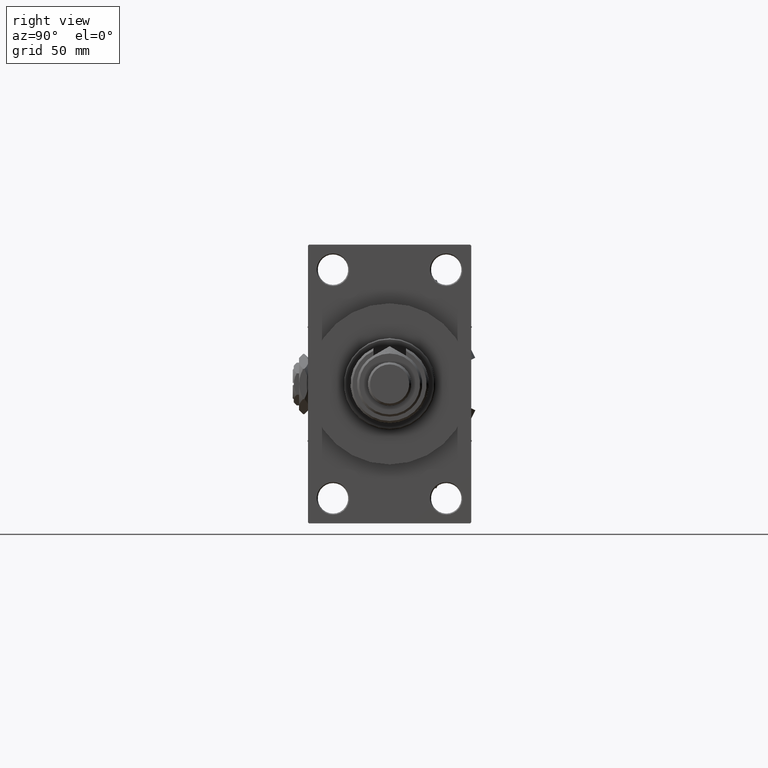
[diagram: clean part render]
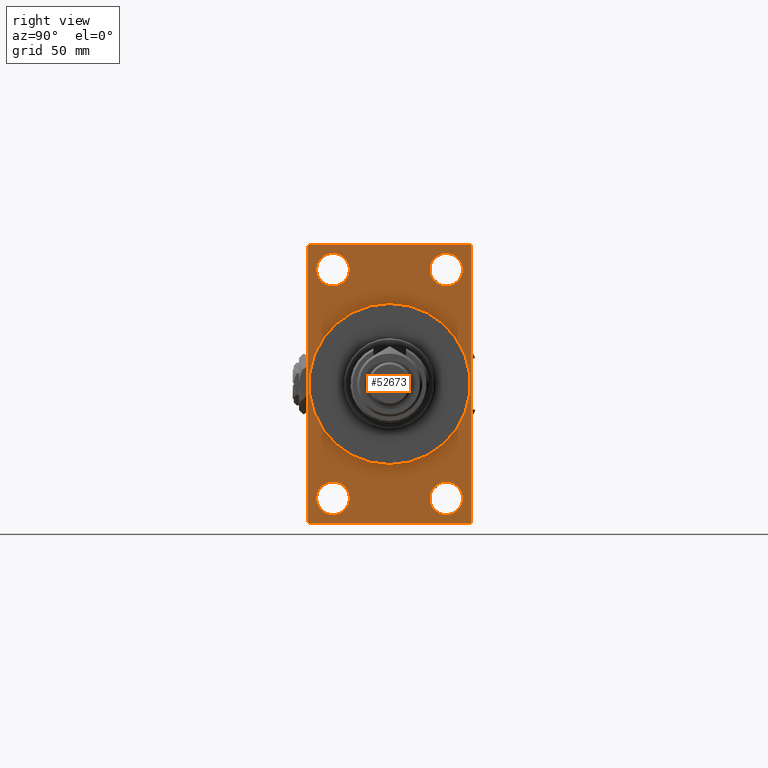
[diagram: same view with one face highlighted and labeled with its STEP entity id]
A machine part, right view. The second image highlights one B-rep face of the part: STEP entity #52673.
In plain terms, the highlighted planar face has unit normal (-1, 0, 0).
Its self-contained STEP definition (entity closure, byte-faithful):
#44 = CARTESIAN_POINT ( 'NONE',  ( 157.9999999999999716, 37.50000000000000000, 63.99999999999998579 ) ) ;
#129 = CARTESIAN_POINT ( 'NONE',  ( 157.9999999999999716, -25.99999999999999645, -52.49999999999999289 ) ) ;
#328 = EDGE_CURVE ( 'NONE', #30383, #16313, #30886, .T. ) ;
#350 = AXIS2_PLACEMENT_3D ( 'NONE', #17494, #12932, #17227 ) ;
#419 = DIRECTION ( 'NONE',  ( 0.000000000000000000, 0.000000000000000000, -1.000000000000000000 ) ) ;
#1215 = VERTEX_POINT ( 'NONE', #42977 ) ;
#1623 = CARTESIAN_POINT ( 'NONE',  ( 157.9999999999999716, 26.00000000000000000, -45.00000000000004263 ) ) ;
#2176 = VECTOR ( 'NONE', #12443, 1000.000000000000000 ) ;
#2857 = CARTESIAN_POINT ( 'NONE',  ( 157.9999999999999716, 37.49999999999999289, -64.00000000000000000 ) ) ;
#3016 = CARTESIAN_POINT ( 'NONE',  ( 157.9999999999999716, -25.99999999999999645, 45.00000000000004974 ) ) ;
#3914 = DIRECTION ( 'NONE',  ( 1.000000000000000000, 0.000000000000000000, 0.000000000000000000 ) ) ;
#5043 = DIRECTION ( 'NONE',  ( 1.000000000000000000, 0.000000000000000000, 0.000000000000000000 ) ) ;
#5091 = DIRECTION ( 'NONE',  ( -1.000000000000000000, 0.000000000000000000, -0.000000000000000000 ) ) ;
#5607 = DIRECTION ( 'NONE',  ( 0.000000000000000000, 0.000000000000000000, -1.000000000000000000 ) ) ;
#5617 = CARTESIAN_POINT ( 'NONE',  ( 157.9999999999999716, 26.00000000000000000, 52.49999999999999289 ) ) ;
#5837 = DIRECTION ( 'NONE',  ( 0.000000000000000000, 0.000000000000000000, 1.000000000000000000 ) ) ;
#7287 = EDGE_CURVE ( 'NONE', #33253, #22777, #9610, .T. ) ;
#7332 = ORIENTED_EDGE ( 'NONE', *, *, #34039, .T. ) ;
#7348 = EDGE_CURVE ( 'NONE', #8524, #39269, #18101, .T. ) ;
#7702 = DIRECTION ( 'NONE',  ( -1.000000000000000000, 0.000000000000000000, -0.000000000000000000 ) ) ;
#7747 = ORIENTED_EDGE ( 'NONE', *, *, #17603, .T. ) ;
#7845 = LINE ( 'NONE', #53040, #45816 ) ;
#7886 = ORIENTED_EDGE ( 'NONE', *, *, #36265, .T. ) ;
#8241 = DIRECTION ( 'NONE',  ( 0.000000000000000000, 0.000000000000000000, 1.000000000000000000 ) ) ;
#8247 = CIRCLE ( 'NONE', #48609, 7.499999999999951150 ) ;
#8281 = EDGE_LOOP ( 'NONE', ( #32409, #48286 ) ) ;
#8524 = VERTEX_POINT ( 'NONE', #22250 ) ;
#8949 = CIRCLE ( 'NONE', #350, 7.499999999999951150 ) ;
#9398 = DIRECTION ( 'NONE',  ( 0.000000000000000000, 0.000000000000000000, 1.000000000000000000 ) ) ;
#9586 = VECTOR ( 'NONE', #27906, 1000.000000000000114 ) ;
#9610 = LINE ( 'NONE', #18748, #36990 ) ;
#9666 = DIRECTION ( 'NONE',  ( -1.000000000000000000, 0.000000000000000000, -0.000000000000000000 ) ) ;
#9879 = CARTESIAN_POINT ( 'NONE',  ( 157.9999999999999716, 0.000000000000000000, 0.000000000000000000 ) ) ;
#9913 = CARTESIAN_POINT ( 'NONE',  ( 157.9999999999999716, -37.49999999999999289, 63.99999999999997158 ) ) ;
#9975 = AXIS2_PLACEMENT_3D ( 'NONE', #12799, #3914, #419 ) ;
#10103 = LINE ( 'NONE', #10641, #25119 ) ;
#10641 = CARTESIAN_POINT ( 'NONE',  ( 157.9999999999999716, -37.49999999999999289, 63.49999999999997158 ) ) ;
#10931 = DIRECTION ( 'NONE',  ( 0.000000000000000000, -1.000000000000000000, -1.850371707708594563E-16 ) ) ;
#11978 = VERTEX_POINT ( 'NONE', #33867 ) ;
#12443 = DIRECTION ( 'NONE',  ( 0.000000000000000000, -5.421010862427522170E-17, -1.000000000000000000 ) ) ;
#12473 = VERTEX_POINT ( 'NONE', #3016 ) ;
#12799 = CARTESIAN_POINT ( 'NONE',  ( 157.9999999999999716, 0.000000000000000000, 0.000000000000000000 ) ) ;
#12932 = DIRECTION ( 'NONE',  ( -1.000000000000000000, 0.000000000000000000, -0.000000000000000000 ) ) ;
#13257 = VERTEX_POINT ( 'NONE', #29718 ) ;
#13450 = DIRECTION ( 'NONE',  ( 0.000000000000000000, 0.000000000000000000, 1.000000000000000000 ) ) ;
#13901 = DIRECTION ( 'NONE',  ( 0.000000000000000000, 0.000000000000000000, 1.000000000000000000 ) ) ;
#14375 = ORIENTED_EDGE ( 'NONE', *, *, #18525, .F. ) ;
#14579 = ORIENTED_EDGE ( 'NONE', *, *, #328, .T. ) ;
#15518 = AXIS2_PLACEMENT_3D ( 'NONE', #37406, #9666, #9398 ) ;
#15709 = CARTESIAN_POINT ( 'NONE',  ( 157.9999999999999716, 37.49999999999999289, -63.50000000000001421 ) ) ;
#15939 = EDGE_LOOP ( 'NONE', ( #47846, #48045 ) ) ;
#15985 = DIRECTION ( 'NONE',  ( -1.000000000000000000, 0.000000000000000000, -0.000000000000000000 ) ) ;
#16281 = AXIS2_PLACEMENT_3D ( 'NONE', #27493, #34053, #47927 ) ;
#16313 = VERTEX_POINT ( 'NONE', #43724 ) ;
#17029 = VERTEX_POINT ( 'NONE', #24619 ) ;
#17227 = DIRECTION ( 'NONE',  ( 0.000000000000000000, 0.000000000000000000, 1.000000000000000000 ) ) ;
#17494 = CARTESIAN_POINT ( 'NONE',  ( 157.9999999999999716, -25.99999999999999645, 52.50000000000000000 ) ) ;
#17603 = EDGE_CURVE ( 'NONE', #12473, #11978, #8949, .T. ) ;
#17635 = CARTESIAN_POINT ( 'NONE',  ( 157.9999999999999716, 26.00000000000000000, 45.00000000000004263 ) ) ;
#18101 = CIRCLE ( 'NONE', #31030, 7.499999999999951150 ) ;
#18202 = CARTESIAN_POINT ( 'NONE',  ( 157.9999999999999716, 26.00000000000000000, -52.49999999999999289 ) ) ;
#18525 = EDGE_CURVE ( 'NONE', #17029, #49615, #43334, .T. ) ;
#18748 = CARTESIAN_POINT ( 'NONE',  ( 157.9999999999999716, 37.49999999999999289, -63.50000000000001421 ) ) ;
#19497 = CARTESIAN_POINT ( 'NONE',  ( 157.9999999999999716, 4.531193156845206793E-15, -37.00000000000000000 ) ) ;
#19726 = ORIENTED_EDGE ( 'NONE', *, *, #7348, .T. ) ;
#19808 = ORIENTED_EDGE ( 'NONE', *, *, #7287, .T. ) ;
#19831 = CARTESIAN_POINT ( 'NONE',  ( 157.9999999999999716, 26.00000000000000000, -52.49999999999999289 ) ) ;
#19877 = CARTESIAN_POINT ( 'NONE',  ( 157.9999999999999716, 37.50000000000000000, 63.49999999999998579 ) ) ;
#20375 = LINE ( 'NONE', #36778, #9586 ) ;
#20506 = DIRECTION ( 'NONE',  ( -1.000000000000000000, 0.000000000000000000, -0.000000000000000000 ) ) ;
#20736 = EDGE_CURVE ( 'NONE', #13257, #1215, #39964, .T. ) ;
#20789 = EDGE_CURVE ( 'NONE', #52287, #22777, #41190, .T. ) ;
#20901 = VERTEX_POINT ( 'NONE', #50072 ) ;
#20941 = EDGE_LOOP ( 'NONE', ( #7747, #39765 ) ) ;
#21467 = EDGE_CURVE ( 'NONE', #46820, #26017, #8247, .T. ) ;
#21476 = DIRECTION ( 'NONE',  ( 0.000000000000000000, 0.000000000000000000, -1.000000000000000000 ) ) ;
#22250 = CARTESIAN_POINT ( 'NONE',  ( 157.9999999999999716, 26.00000000000000000, 59.99999999999994316 ) ) ;
#22543 = EDGE_CURVE ( 'NONE', #49615, #17029, #33193, .T. ) ;
#22601 = CARTESIAN_POINT ( 'NONE',  ( 157.9999999999999716, -37.49999999999999289, 63.49999999999997158 ) ) ;
#22777 = VERTEX_POINT ( 'NONE', #15709 ) ;
#23799 = ORIENTED_EDGE ( 'NONE', *, *, #39109, .F. ) ;
#24619 = CARTESIAN_POINT ( 'NONE',  ( 157.9999999999999716, 0.000000000000000000, 37.00000000000000000 ) ) ;
#25119 = VECTOR ( 'NONE', #42893, 999.9999999999998863 ) ;
#25308 = VECTOR ( 'NONE', #10931, 1000.000000000000000 ) ;
#25466 = EDGE_CURVE ( 'NONE', #33565, #46459, #29506, .T. ) ;
#26017 = VERTEX_POINT ( 'NONE', #1623 ) ;
#26032 = DIRECTION ( 'NONE',  ( -0.000000000000000000, 0.7071067811865376918, 0.7071067811865573427 ) ) ;
#26963 = FACE_BOUND ( 'NONE', #50837, .T. ) ;
#27038 = AXIS2_PLACEMENT_3D ( 'NONE', #9879, #5043, #21476 ) ;
#27453 = EDGE_CURVE ( 'NONE', #39269, #8524, #37871, .T. ) ;
#27493 = CARTESIAN_POINT ( 'NONE',  ( 157.9999999999999716, 0.000000000000000000, 0.000000000000000000 ) ) ;
#27906 = DIRECTION ( 'NONE',  ( 0.000000000000000000, -0.7071067811865474617, 0.7071067811865474617 ) ) ;
#29506 = LINE ( 'NONE', #30548, #48074 ) ;
#29718 = CARTESIAN_POINT ( 'NONE',  ( 157.9999999999999716, -25.99999999999999645, -45.00000000000004263 ) ) ;
#30010 = PLANE ( 'NONE',  #16281 ) ;
#30383 = VERTEX_POINT ( 'NONE', #22601 ) ;
#30548 = CARTESIAN_POINT ( 'NONE',  ( 157.9999999999999716, 37.50000000000000000, 63.99999999999998579 ) ) ;
#30886 = LINE ( 'NONE', #9913, #50582 ) ;
#31030 = AXIS2_PLACEMENT_3D ( 'NONE', #5617, #5091, #13450 ) ;
#32388 = EDGE_LOOP ( 'NONE', ( #14579, #7886, #23799, #19808, #40866, #37458, #49298, #7332 ) ) ;
#32409 = ORIENTED_EDGE ( 'NONE', *, *, #38052, .T. ) ;
#32608 = CARTESIAN_POINT ( 'NONE',  ( 157.9999999999999716, -25.99999999999999645, -52.49999999999999289 ) ) ;
#32958 = EDGE_CURVE ( 'NONE', #52287, #33565, #20375, .T. ) ;
#32970 = DIRECTION ( 'NONE',  ( 0.000000000000000000, 0.000000000000000000, 1.000000000000000000 ) ) ;
#33193 = CIRCLE ( 'NONE', #9975, 37.00000000000000000 ) ;
#33253 = VERTEX_POINT ( 'NONE', #50142 ) ;
#33565 = VERTEX_POINT ( 'NONE', #36912 ) ;
#33867 = CARTESIAN_POINT ( 'NONE',  ( 157.9999999999999716, -25.99999999999999645, 59.99999999999995026 ) ) ;
#34039 = EDGE_CURVE ( 'NONE', #46459, #30383, #10103, .T. ) ;
#34053 = DIRECTION ( 'NONE',  ( -1.000000000000000000, 0.000000000000000000, -0.000000000000000000 ) ) ;
#35563 = FACE_BOUND ( 'NONE', #15939, .T. ) ;
#35586 = CIRCLE ( 'NONE', #36444, 7.499999999999951150 ) ;
#36265 = EDGE_CURVE ( 'NONE', #16313, #20901, #7845, .T. ) ;
#36431 = CARTESIAN_POINT ( 'NONE',  ( 157.9999999999999716, -25.99999999999999645, 52.50000000000000000 ) ) ;
#36444 = AXIS2_PLACEMENT_3D ( 'NONE', #129, #41016, #32970 ) ;
#36778 = CARTESIAN_POINT ( 'NONE',  ( 157.9999999999999716, 37.00000000000000000, 63.99999999999998579 ) ) ;
#36912 = CARTESIAN_POINT ( 'NONE',  ( 157.9999999999999716, 37.00000000000000000, 63.99999999999998579 ) ) ;
#36990 = VECTOR ( 'NONE', #26032, 1000.000000000000114 ) ;
#37406 = CARTESIAN_POINT ( 'NONE',  ( 157.9999999999999716, 26.00000000000000000, 52.49999999999999289 ) ) ;
#37458 = ORIENTED_EDGE ( 'NONE', *, *, #32958, .T. ) ;
#37778 = ORIENTED_EDGE ( 'NONE', *, *, #22543, .F. ) ;
#37871 = CIRCLE ( 'NONE', #15518, 7.499999999999951150 ) ;
#38052 = EDGE_CURVE ( 'NONE', #1215, #13257, #35586, .T. ) ;
#38080 = FACE_BOUND ( 'NONE', #8281, .T. ) ;
#38341 = FACE_OUTER_BOUND ( 'NONE', #32388, .T. ) ;
#39109 = EDGE_CURVE ( 'NONE', #33253, #20901, #39705, .T. ) ;
#39269 = VERTEX_POINT ( 'NONE', #17635 ) ;
#39705 = LINE ( 'NONE', #2857, #25308 ) ;
#39765 = ORIENTED_EDGE ( 'NONE', *, *, #48406, .T. ) ;
#39964 = CIRCLE ( 'NONE', #41702, 7.499999999999951150 ) ;
#40866 = ORIENTED_EDGE ( 'NONE', *, *, #20789, .F. ) ;
#41016 = DIRECTION ( 'NONE',  ( -1.000000000000000000, 0.000000000000000000, -0.000000000000000000 ) ) ;
#41190 = LINE ( 'NONE', #44, #2176 ) ;
#41702 = AXIS2_PLACEMENT_3D ( 'NONE', #32608, #20506, #49012 ) ;
#41867 = CIRCLE ( 'NONE', #50475, 7.499999999999951150 ) ;
#42092 = FACE_BOUND ( 'NONE', #20941, .T. ) ;
#42367 = DIRECTION ( 'NONE',  ( 0.000000000000000000, -1.000000000000000000, -1.850371707708594563E-16 ) ) ;
#42889 = AXIS2_PLACEMENT_3D ( 'NONE', #19831, #7702, #8241 ) ;
#42893 = DIRECTION ( 'NONE',  ( -0.000000000000000000, -0.7071067811865525687, -0.7071067811865425767 ) ) ;
#42977 = CARTESIAN_POINT ( 'NONE',  ( 157.9999999999999716, -25.99999999999999645, -59.99999999999994316 ) ) ;
#43334 = CIRCLE ( 'NONE', #27038, 37.00000000000000000 ) ;
#43596 = EDGE_LOOP ( 'NONE', ( #14375, #37778 ) ) ;
#43724 = CARTESIAN_POINT ( 'NONE',  ( 157.9999999999999716, -37.49999999999999289, -63.49999999999997158 ) ) ;
#45816 = VECTOR ( 'NONE', #52034, 1000.000000000000000 ) ;
#46459 = VERTEX_POINT ( 'NONE', #47329 ) ;
#46820 = VERTEX_POINT ( 'NONE', #48336 ) ;
#47329 = CARTESIAN_POINT ( 'NONE',  ( 157.9999999999999716, -36.99999999999998579, 63.99999999999997158 ) ) ;
#47846 = ORIENTED_EDGE ( 'NONE', *, *, #21467, .T. ) ;
#47927 = DIRECTION ( 'NONE',  ( -0.000000000000000000, 0.000000000000000000, 1.000000000000000000 ) ) ;
#48045 = ORIENTED_EDGE ( 'NONE', *, *, #49387, .T. ) ;
#48074 = VECTOR ( 'NONE', #42367, 1000.000000000000000 ) ;
#48286 = ORIENTED_EDGE ( 'NONE', *, *, #20736, .T. ) ;
#48336 = CARTESIAN_POINT ( 'NONE',  ( 157.9999999999999716, 26.00000000000000000, -59.99999999999994316 ) ) ;
#48406 = EDGE_CURVE ( 'NONE', #11978, #12473, #41867, .T. ) ;
#48609 = AXIS2_PLACEMENT_3D ( 'NONE', #18202, #50742, #13901 ) ;
#49012 = DIRECTION ( 'NONE',  ( 0.000000000000000000, 0.000000000000000000, 1.000000000000000000 ) ) ;
#49298 = ORIENTED_EDGE ( 'NONE', *, *, #25466, .T. ) ;
#49387 = EDGE_CURVE ( 'NONE', #26017, #46820, #51468, .T. ) ;
#49615 = VERTEX_POINT ( 'NONE', #19497 ) ;
#50072 = CARTESIAN_POINT ( 'NONE',  ( 157.9999999999999716, -36.99999999999996447, -64.00000000000001421 ) ) ;
#50142 = CARTESIAN_POINT ( 'NONE',  ( 157.9999999999999716, 37.00000000000002132, -64.00000000000000000 ) ) ;
#50475 = AXIS2_PLACEMENT_3D ( 'NONE', #36431, #15985, #5837 ) ;
#50582 = VECTOR ( 'NONE', #5607, 1000.000000000000000 ) ;
#50742 = DIRECTION ( 'NONE',  ( -1.000000000000000000, 0.000000000000000000, -0.000000000000000000 ) ) ;
#50837 = EDGE_LOOP ( 'NONE', ( #50859, #19726 ) ) ;
#50859 = ORIENTED_EDGE ( 'NONE', *, *, #27453, .T. ) ;
#51468 = CIRCLE ( 'NONE', #42889, 7.499999999999951150 ) ;
#51951 = FACE_BOUND ( 'NONE', #43596, .T. ) ;
#52034 = DIRECTION ( 'NONE',  ( 0.000000000000000000, 0.7071067811865378028, -0.7071067811865573427 ) ) ;
#52287 = VERTEX_POINT ( 'NONE', #19877 ) ;
#52673 = ADVANCED_FACE ( 'NONE', ( #42092, #38080, #35563, #26963, #51951, #38341 ), #30010, .F. ) ;
#53040 = CARTESIAN_POINT ( 'NONE',  ( 157.9999999999999716, -36.99999999999996447, -64.00000000000001421 ) ) ;